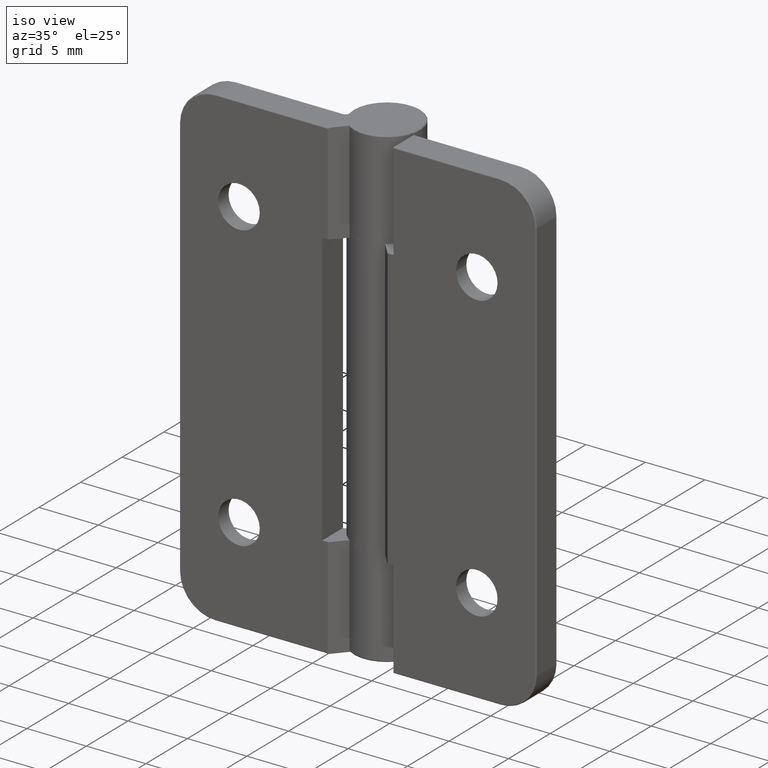
[diagram: clean part render]
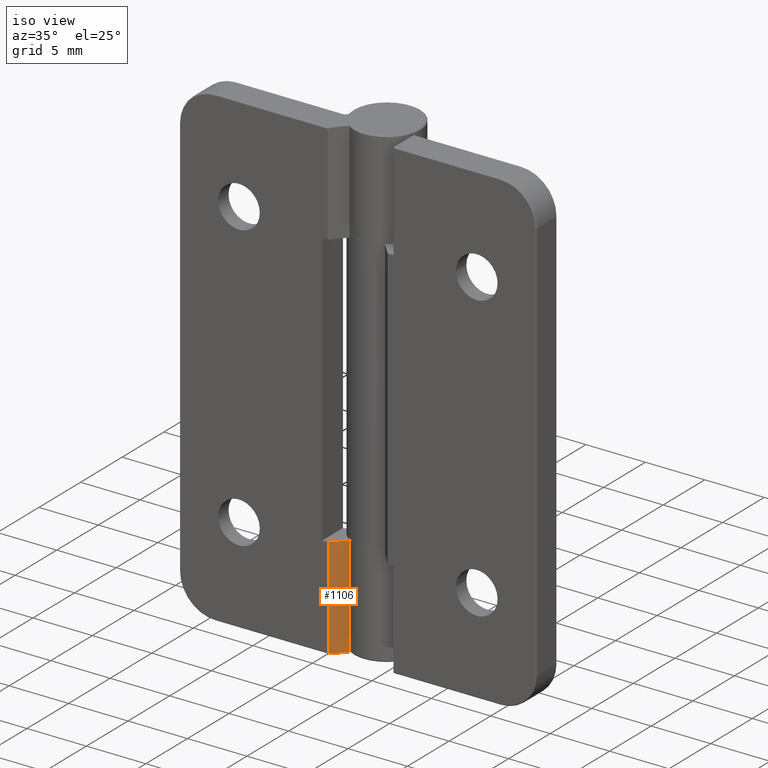
[diagram: same view with one face highlighted and labeled with its STEP entity id]
A machine part, iso view. The second image highlights one B-rep face of the part: STEP entity #1106.
In plain terms, the highlighted planar face has unit normal (0.7505, -0.6609, 0).
Its self-contained STEP definition (entity closure, byte-faithful):
#52=B_SPLINE_CURVE_WITH_KNOTS('',3,(#1832,#1833,#1834,#1835,#1836,#1837,
#1838,#1839,#1840,#1841),.UNSPECIFIED.,.F.,.F.,(4,2,2,2,4),(0.0447292484573334,
0.0484960524378151,0.0522363826996618,0.055947224820481,0.0596347452006244),
 .UNSPECIFIED.);
#56=ELLIPSE('',#1196,0.133241509402588,0.1);
#211=FACE_OUTER_BOUND('',#287,.T.);
#287=EDGE_LOOP('',(#835,#836,#837,#838,#839,#840));
#371=LINE('',#1748,#440);
#382=LINE('',#1807,#451);
#386=LINE('',#1830,#455);
#387=LINE('',#1842,#456);
#440=VECTOR('',#1352,1.46801104222111);
#451=VECTOR('',#1403,8.47505168655652);
#455=VECTOR('',#1433,1.48124381821327);
#456=VECTOR('',#1434,8.4);
#512=VERTEX_POINT('',#1745);
#513=VERTEX_POINT('',#1747);
#531=VERTEX_POINT('',#1805);
#533=VERTEX_POINT('',#1811);
#537=VERTEX_POINT('',#1829);
#538=VERTEX_POINT('',#1831);
#616=EDGE_CURVE('',#513,#512,#371,.T.);
#641=EDGE_CURVE('',#531,#512,#382,.T.);
#644=EDGE_CURVE('',#533,#531,#56,.T.);
#652=EDGE_CURVE('',#533,#537,#386,.T.);
#653=EDGE_CURVE('',#538,#537,#52,.F.);
#654=EDGE_CURVE('',#538,#513,#387,.T.);
#835=ORIENTED_EDGE('',*,*,#616,.T.);
#836=ORIENTED_EDGE('',*,*,#641,.F.);
#837=ORIENTED_EDGE('',*,*,#644,.F.);
#838=ORIENTED_EDGE('',*,*,#652,.T.);
#839=ORIENTED_EDGE('',*,*,#653,.F.);
#840=ORIENTED_EDGE('',*,*,#654,.T.);
#1074=PLANE('',#1206);
#1106=ADVANCED_FACE('',(#211),#1074,.T.);
#1196=AXIS2_PLACEMENT_3D('',#1813,#1409,#1410);
#1206=AXIS2_PLACEMENT_3D('',#1828,#1431,#1432);
#1352=DIRECTION('',(-0.660851295301948,-0.75051686556515,0.));
#1403=DIRECTION('',(0.,0.,1.));
#1409=DIRECTION('center_axis',(-0.75051686556515,0.660851295301948,0.));
#1410=DIRECTION('ref_axis',(-0.660851295301948,-0.75051686556515,-6.50969612906197E-17));
#1431=DIRECTION('center_axis',(0.75051686556515,-0.660851295301948,0.));
#1432=DIRECTION('ref_axis',(0.660851295301948,0.75051686556515,0.));
#1433=DIRECTION('',(0.660851295301948,0.75051686556515,0.));
#1434=DIRECTION('',(0.,0.,1.));
#1745=CARTESIAN_POINT('',(-2.47013699876939,0.0339148704698053,-11.5));
#1747=CARTESIAN_POINT('',(-1.5,1.13568191649262,-11.5));
#1748=CARTESIAN_POINT('',(0.216896210948402,3.08552989576143,-11.5));
#1805=CARTESIAN_POINT('',(-2.47013699876939,0.0339148704698053,-19.9750516865565));
#1807=CARTESIAN_POINT('',(-2.47013699876939,0.0339148704698053,0.));
#1811=CARTESIAN_POINT('',(-2.41194717592331,0.0999999999999998,-20.));
#1813=CARTESIAN_POINT('Origin',(-2.41194717592331,0.1,-19.9));
#1828=CARTESIAN_POINT('Origin',(-2.5,0.,0.));
#1829=CARTESIAN_POINT('',(-1.43306527999907,1.21169846758318,-20.));
#1830=CARTESIAN_POINT('',(-3.52337416563521,-1.16222753371763,-20.));
#1831=CARTESIAN_POINT('',(-1.5,1.13568191649262,-19.9));
#1832=CARTESIAN_POINT('Ctrl Pts',(-1.43306527999907,1.21169846758318,-20.));
#1833=CARTESIAN_POINT('Ctrl Pts',(-1.44136293763124,1.20227496786108,-20.));
#1834=CARTESIAN_POINT('Ctrl Pts',(-1.45113246356521,1.19117989392516,-19.9970885239105));
#1835=CARTESIAN_POINT('Ctrl Pts',(-1.46642719500191,1.17380994401489,-19.9875729768264));
#1836=CARTESIAN_POINT('Ctrl Pts',(-1.4746722132229,1.16444622592016,-19.97931576268));
#1837=CARTESIAN_POINT('Ctrl Pts',(-1.4863222512831,1.15121548836874,-19.9618196845131));
#1838=CARTESIAN_POINT('Ctrl Pts',(-1.49180698033827,1.14498658076392,-19.9495134241074));
#1839=CARTESIAN_POINT('Ctrl Pts',(-1.49808182171631,1.13786035688202,-19.9267534044351));
#1840=CARTESIAN_POINT('Ctrl Pts',(-1.5,1.13568191649262,-19.9122917346005));
#1841=CARTESIAN_POINT('Ctrl Pts',(-1.5,1.13568191649262,-19.9));
#1842=CARTESIAN_POINT('',(-1.5,1.13568191649262,0.));